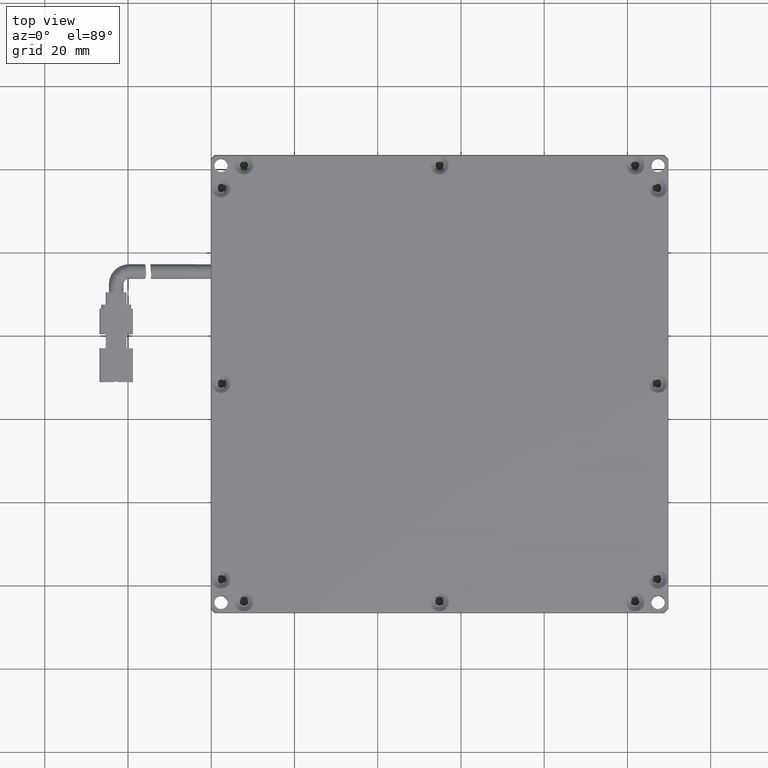
[diagram: clean part render]
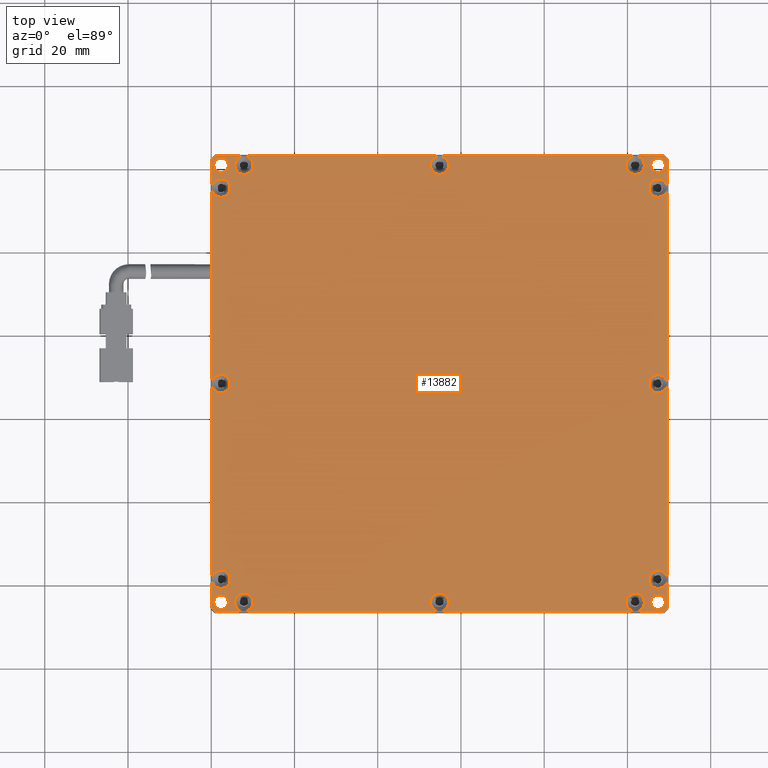
[diagram: same view with one face highlighted and labeled with its STEP entity id]
A machine part, top view. The second image highlights one B-rep face of the part: STEP entity #13882.
In plain terms, the highlighted planar face has unit normal (0, 0, -1).
Its self-contained STEP definition (entity closure, byte-faithful):
#17 = DIRECTION ( 'NONE',  ( 0.0000000000000000000, -0.0000000000000000000, 1.000000000000000000 ) ) ;
#31 = CARTESIAN_POINT ( 'NONE',  ( -49.94509354715299300, 60.90015273004998200, 1.499999999976502800 ) ) ;
#33 = AXIS2_PLACEMENT_3D ( 'NONE', #13126, #4910, #14534 ) ;
#40 = CARTESIAN_POINT ( 'NONE',  ( 41.85490645283988400, 63.10015273005349500, 1.499999999976250300 ) ) ;
#45 = CARTESIAN_POINT ( 'NONE',  ( -57.64509354715999500, 10.60015273005700800, 1.499999999976503200 ) ) ;
#79 = CARTESIAN_POINT ( 'NONE',  ( -7.345093547154510500, 60.90015273004998200, 1.499999999976502800 ) ) ;
#89 = CARTESIAN_POINT ( 'NONE',  ( 49.55490645284351100, 8.400152730050445300, 1.499999999976251200 ) ) ;
#109 = CIRCLE ( 'NONE', #8800, 1.749999999999994700 ) ;
#211 = DIRECTION ( 'NONE',  ( 0.0000000000000000000, -0.0000000000000000000, 1.000000000000000000 ) ) ;
#225 = DIRECTION ( 'NONE',  ( -0.0000000000000000000, -1.000000000000000000, -0.0000000000000000000 ) ) ;
#239 = CARTESIAN_POINT ( 'NONE',  ( -59.84509354715999800, 8.400152730050001200, 1.499999999975999600 ) ) ;
#305 = EDGE_CURVE ( 'NONE', #3238, #8330, #6789, .T. ) ;
#374 = CARTESIAN_POINT ( 'NONE',  ( 49.55490645284395200, -45.47558320123906100, 1.499999999972351000 ) ) ;
#406 = ORIENTED_EDGE ( 'NONE', *, *, #11843, .F. ) ;
#409 = EDGE_CURVE ( 'NONE', #15193, #16561, #3275, .T. ) ;
#416 = VECTOR ( 'NONE', #5576, 1000.000000000000000 ) ;
#417 = DIRECTION ( 'NONE',  ( 1.000000000000000000, 0.0000000000000000000, 0.0000000000000000000 ) ) ;
#420 = CARTESIAN_POINT ( 'NONE',  ( -52.14509354715999500, 60.90015273004998200, 1.499999999976502800 ) ) ;
#429 = FACE_OUTER_BOUND ( 'NONE', #7475, .T. ) ;
#442 = CIRCLE ( 'NONE', #15380, 2.199999999999511200 ) ;
#499 = DIRECTION ( 'NONE',  ( 1.000000000000000000, 0.0000000000000000000, 0.0000000000000000000 ) ) ;
#516 = EDGE_CURVE ( 'NONE', #13823, #10150, #10866, .T. ) ;
#560 = CARTESIAN_POINT ( 'NONE',  ( 44.05490645284703500, 60.90015273004998200, 1.499999999976501000 ) ) ;
#571 = CARTESIAN_POINT ( 'NONE',  ( -52.14509354715999500, -44.09984726994999000, 1.499999999976502800 ) ) ;
#582 = DIRECTION ( 'NONE',  ( 1.000000000000000000, 0.0000000000000000000, 0.0000000000000000000 ) ) ;
#589 = CARTESIAN_POINT ( 'NONE',  ( -52.14509354715999500, -44.09984726994999000, 1.499999999976502800 ) ) ;
#614 = VERTEX_POINT ( 'NONE', #11171 ) ;
#615 = DIRECTION ( 'NONE',  ( 1.000000000000000000, 0.0000000000000000000, 0.0000000000000000000 ) ) ;
#629 = VERTEX_POINT ( 'NONE', #79 ) ;
#634 = CARTESIAN_POINT ( 'NONE',  ( -5.145093547157498100, 63.10015273004995600, 1.499999999976251200 ) ) ;
#684 = EDGE_CURVE ( 'NONE', #10461, #3238, #14657, .T. ) ;
#728 = DIRECTION ( 'NONE',  ( 0.0000000000000000000, -1.000000000000000000, 0.0000000000000000000 ) ) ;
#744 = CARTESIAN_POINT ( 'NONE',  ( -5.145093547154998800, -44.09984726994999000, 1.499999999976503200 ) ) ;
#754 = AXIS2_PLACEMENT_3D ( 'NONE', #5328, #14928, #6706 ) ;
#759 = DIRECTION ( 'NONE',  ( 1.000000000000000000, 0.0000000000000000000, 0.0000000000000000000 ) ) ;
#764 = AXIS2_PLACEMENT_3D ( 'NONE', #13228, #5028, #14648 ) ;
#771 = AXIS2_PLACEMENT_3D ( 'NONE', #8363, #17, #9722 ) ;
#878 = EDGE_CURVE ( 'NONE', #17090, #10628, #4056, .T. ) ;
#882 = VECTOR ( 'NONE', #3374, 1000.000000000000000 ) ;
#886 = ORIENTED_EDGE ( 'NONE', *, *, #12530, .F. ) ;
#1027 = DIRECTION ( 'NONE',  ( 1.000000000000000000, 0.0000000000000000000, 0.0000000000000000000 ) ) ;
#1089 = AXIS2_PLACEMENT_3D ( 'NONE', #11993, #3720, #13337 ) ;
#1215 = LINE ( 'NONE', #10677, #4483 ) ;
#1227 = CARTESIAN_POINT ( 'NONE',  ( 49.55490645284083900, 62.27588866133746800, 1.499999999976171500 ) ) ;
#1247 = ORIENTED_EDGE ( 'NONE', *, *, #3846, .F. ) ;
#1284 = CARTESIAN_POINT ( 'NONE',  ( 45.60490645284001900, -44.09984726994999000, 1.499999999976394900 ) ) ;
#1318 = DIRECTION ( 'NONE',  ( 0.0000000000000000000, -1.000000000000000000, 0.0000000000000000000 ) ) ;
#1322 = CIRCLE ( 'NONE', #11028, 1.749999999999987600 ) ;
#1329 = AXIS2_PLACEMENT_3D ( 'NONE', #2086, #11779, #3514 ) ;
#1491 = CIRCLE ( 'NONE', #3435, 2.200000000007001700 ) ;
#1576 = DIRECTION ( 'NONE',  ( 0.0000000000000000000, 2.464095846551420200E-017, 1.000000000000000000 ) ) ;
#1600 = CARTESIAN_POINT ( 'NONE',  ( 47.35490645284001200, 60.90015273004998200, 1.499999999976394900 ) ) ;
#1619 = CARTESIAN_POINT ( 'NONE',  ( -5.145093547160004600, -46.29984726994998600, 1.499999999975999600 ) ) ;
#1624 = EDGE_CURVE ( 'NONE', #5637, #15183, #1491, .T. ) ;
#1659 = ORIENTED_EDGE ( 'NONE', *, *, #4118, .F. ) ;
#1667 = VERTEX_POINT ( 'NONE', #7657 ) ;
#1710 = EDGE_CURVE ( 'NONE', #10150, #13823, #2580, .T. ) ;
#1776 = VECTOR ( 'NONE', #10182, 1000.000000000000000 ) ;
#1819 = DIRECTION ( 'NONE',  ( 1.000000000000000000, 0.0000000000000000000, 0.0000000000000000000 ) ) ;
#1825 = EDGE_CURVE ( 'NONE', #5127, #4232, #7369, .T. ) ;
#1880 = AXIS2_PLACEMENT_3D ( 'NONE', #6906, #16509, #8296 ) ;
#1950 = CARTESIAN_POINT ( 'NONE',  ( 49.55490645284352500, -38.59984726994954200, 1.499999999976253900 ) ) ;
#1952 = ORIENTED_EDGE ( 'NONE', *, *, #15046, .F. ) ;
#1968 = DIRECTION ( 'NONE',  ( 1.000000000000000000, 0.0000000000000000000, 0.0000000000000000000 ) ) ;
#1988 = DIRECTION ( 'NONE',  ( 1.000000000000000000, 0.0000000000000000000, 0.0000000000000000000 ) ) ;
#2003 = CIRCLE ( 'NONE', #13406, 2.200000000007008800 ) ;
#2020 = AXIS2_PLACEMENT_3D ( 'NONE', #11742, #3476, #13097 ) ;
#2036 = CIRCLE ( 'NONE', #7072, 2.200000000007001700 ) ;
#2086 = CARTESIAN_POINT ( 'NONE',  ( -57.64509354715999500, -44.09984726994999000, 1.499999999976394900 ) ) ;
#2104 = EDGE_CURVE ( 'NONE', #2414, #16813, #16998, .T. ) ;
#2113 = VERTEX_POINT ( 'NONE', #10269 ) ;
#2140 = DIRECTION ( 'NONE',  ( 0.0000000000000000000, -1.000000000000000000, 0.0000000000000000000 ) ) ;
#2290 = EDGE_CURVE ( 'NONE', #8701, #3238, #13771, .T. ) ;
#2327 = CARTESIAN_POINT ( 'NONE',  ( -5.145093547160004600, 63.10015273004995600, 1.499999999975999600 ) ) ;
#2409 = EDGE_CURVE ( 'NONE', #7368, #17090, #16354, .T. ) ;
#2414 = VERTEX_POINT ( 'NONE', #8625 ) ;
#2520 = EDGE_CURVE ( 'NONE', #15606, #11055, #14850, .T. ) ;
#2545 = LINE ( 'NONE', #8590, #9913 ) ;
#2562 = ORIENTED_EDGE ( 'NONE', *, *, #13867, .F. ) ;
#2580 = CIRCLE ( 'NONE', #10861, 2.200000000007022600 ) ;
#2633 = AXIS2_PLACEMENT_3D ( 'NONE', #15417, #7208, #16792 ) ;
#2644 = CARTESIAN_POINT ( 'NONE',  ( -59.39509354715998100, 60.90015273004998200, 1.499999999976394900 ) ) ;
#2645 = EDGE_CURVE ( 'NONE', #13823, #10453, #15465, .T. ) ;
#2675 = DIRECTION ( 'NONE',  ( 0.7071067811870565000, 0.7071067811860385400, -7.072468389092289300E-013 ) ) ;
#2752 = CIRCLE ( 'NONE', #6015, 2.200000000007008800 ) ;
#2770 = DIRECTION ( 'NONE',  ( 0.0000000000000000000, -0.0000000000000000000, 1.000000000000000000 ) ) ;
#2800 = EDGE_CURVE ( 'NONE', #10494, #9444, #9035, .T. ) ;
#2820 = CARTESIAN_POINT ( 'NONE',  ( 41.85490645283999800, 60.90015273004998200, 1.499999999976501000 ) ) ;
#2936 = DIRECTION ( 'NONE',  ( 0.0000000000000000000, -0.0000000000000000000, 1.000000000000000000 ) ) ;
#2995 = ORIENTED_EDGE ( 'NONE', *, *, #11430, .F. ) ;
#3006 = DIRECTION ( 'NONE',  ( 1.000000000000000000, 0.0000000000000000000, 0.0000000000000000000 ) ) ;
#3022 = CARTESIAN_POINT ( 'NONE',  ( 47.35490645284001200, -44.09984726994999000, 1.499999999976394900 ) ) ;
#3062 = CARTESIAN_POINT ( 'NONE',  ( 41.85490645283999800, -44.09984726994999000, 1.499999999976497900 ) ) ;
#3144 = CARTESIAN_POINT ( 'NONE',  ( -5.145093547154998800, -44.09984726994999000, 1.499999999976503200 ) ) ;
#3169 = CIRCLE ( 'NONE', #16489, 2.199999999999511200 ) ;
#3182 = CARTESIAN_POINT ( 'NONE',  ( -59.84509354716350800, -38.59984726995022400, 1.499999999976253400 ) ) ;
#3199 = AXIS2_PLACEMENT_3D ( 'NONE', #2820, #12506, #4238 ) ;
#3224 = ORIENTED_EDGE ( 'NONE', *, *, #3867, .F. ) ;
#3238 = VERTEX_POINT ( 'NONE', #10977 ) ;
#3275 = CIRCLE ( 'NONE', #16688, 2.200000000007008800 ) ;
#3355 = CARTESIAN_POINT ( 'NONE',  ( -5.145093547160004600, -46.29984726994998600, 1.499999999975999600 ) ) ;
#3368 = AXIS2_PLACEMENT_3D ( 'NONE', #11233, #2936, #12607 ) ;
#3374 = DIRECTION ( 'NONE',  ( 0.0000000000000000000, 1.000000000000000000, 0.0000000000000000000 ) ) ;
#3375 = CIRCLE ( 'NONE', #10775, 2.200000000007008800 ) ;
#3376 = CIRCLE ( 'NONE', #14885, 2.200000000007015900 ) ;
#3435 = AXIS2_PLACEMENT_3D ( 'NONE', #17135, #8937, #582 ) ;
#3455 = EDGE_LOOP ( 'NONE', ( #4543, #7915 ) ) ;
#3476 = DIRECTION ( 'NONE',  ( 0.0000000000000000000, 2.464095846551414100E-017, 1.000000000000000000 ) ) ;
#3514 = DIRECTION ( 'NONE',  ( 1.000000000000000000, 0.0000000000000000000, 0.0000000000000000000 ) ) ;
#3560 = CARTESIAN_POINT ( 'NONE',  ( 49.55490645284000100, 8.400152730049994100, 1.499999999975999600 ) ) ;
#3579 = AXIS2_PLACEMENT_3D ( 'NONE', #14121, #5880, #15505 ) ;
#3600 = CARTESIAN_POINT ( 'NONE',  ( 47.35490645284001200, -38.59984726995000400, 1.499999999976507500 ) ) ;
#3617 = AXIS2_PLACEMENT_3D ( 'NONE', #17309, #9108, #759 ) ;
#3644 = VECTOR ( 'NONE', #9959, 1000.000000000000000 ) ;
#3692 = DIRECTION ( 'NONE',  ( -0.0000000000000000000, -1.000000000000000000, -0.0000000000000000000 ) ) ;
#3720 = DIRECTION ( 'NONE',  ( 0.0000000000000000000, 2.464095846551412200E-017, 1.000000000000000000 ) ) ;
#3785 = CARTESIAN_POINT ( 'NONE',  ( 39.65490645283296100, -44.09984726994999000, 1.499999999976497900 ) ) ;
#3829 = EDGE_CURVE ( 'NONE', #11652, #5127, #13934, .T. ) ;
#3839 = CARTESIAN_POINT ( 'NONE',  ( -5.145093547160004600, 63.10015273004995600, 1.499999999975999600 ) ) ;
#3846 = EDGE_CURVE ( 'NONE', #4561, #17498, #16727, .T. ) ;
#3867 = EDGE_CURVE ( 'NONE', #17090, #10494, #12646, .T. ) ;
#3885 = EDGE_CURVE ( 'NONE', #614, #9444, #2036, .T. ) ;
#3918 = CIRCLE ( 'NONE', #17537, 1.749999999999994700 ) ;
#4025 = ORIENTED_EDGE ( 'NONE', *, *, #8362, .F. ) ;
#4056 = CIRCLE ( 'NONE', #16588, 2.200000000007036800 ) ;
#4060 = EDGE_CURVE ( 'NONE', #7933, #5637, #4886, .T. ) ;
#4118 = EDGE_CURVE ( 'NONE', #4736, #17090, #17364, .T. ) ;
#4141 = LINE ( 'NONE', #8361, #416 ) ;
#4157 = FACE_BOUND ( 'NONE', #10623, .T. ) ;
#4232 = VERTEX_POINT ( 'NONE', #6194 ) ;
#4237 = CIRCLE ( 'NONE', #6237, 1.749999999999994700 ) ;
#4238 = DIRECTION ( 'NONE',  ( 1.000000000000000000, 0.0000000000000000000, 0.0000000000000000000 ) ) ;
#4240 = CARTESIAN_POINT ( 'NONE',  ( -52.14509354715965400, -46.29984726995348900, 1.499999999976251200 ) ) ;
#4315 = DIRECTION ( 'NONE',  ( 0.0000000000000000000, 0.0000000000000000000, 1.000000000000000000 ) ) ;
#4318 = ORIENTED_EDGE ( 'NONE', *, *, #3829, .F. ) ;
#4357 = DIRECTION ( 'NONE',  ( 1.000000000000000000, -0.0000000000000000000, -0.0000000000000000000 ) ) ;
#4430 = VERTEX_POINT ( 'NONE', #10789 ) ;
#4438 = DIRECTION ( 'NONE',  ( 1.000000000000000000, 0.0000000000000000000, 0.0000000000000000000 ) ) ;
#4475 = DIRECTION ( 'NONE',  ( 1.000000000000000000, 0.0000000000000000000, 0.0000000000000000000 ) ) ;
#4483 = VECTOR ( 'NONE', #6566, 1000.000000000000000 ) ;
#4543 = ORIENTED_EDGE ( 'NONE', *, *, #6625, .F. ) ;
#4553 = DIRECTION ( 'NONE',  ( 0.0000000000000000000, -1.000000000000000000, 0.0000000000000000000 ) ) ;
#4561 = VERTEX_POINT ( 'NONE', #9626 ) ;
#4592 = FACE_BOUND ( 'NONE', #3455, .T. ) ;
#4716 = CARTESIAN_POINT ( 'NONE',  ( -54.34509354716699600, 60.90015273004998200, 1.499999999976502800 ) ) ;
#4736 = VERTEX_POINT ( 'NONE', #4826 ) ;
#4826 = CARTESIAN_POINT ( 'NONE',  ( 48.73064238413535100, -46.29984726994883500, 1.499999999972905000 ) ) ;
#4870 = VERTEX_POINT ( 'NONE', #17518 ) ;
#4886 = CIRCLE ( 'NONE', #754, 2.200000000007001700 ) ;
#4910 = DIRECTION ( 'NONE',  ( 0.0000000000000000000, 0.0000000000000000000, -1.000000000000000000 ) ) ;
#4982 = CARTESIAN_POINT ( 'NONE',  ( 44.05490645284703500, -44.09984726994999000, 1.499999999976497900 ) ) ;
#4984 = CARTESIAN_POINT ( 'NONE',  ( 45.15490645283299600, 8.400152730049999400, 1.499999999976502800 ) ) ;
#5014 = DIRECTION ( 'NONE',  ( 1.000000000000000000, 0.0000000000000000000, 0.0000000000000000000 ) ) ;
#5028 = DIRECTION ( 'NONE',  ( 0.0000000000000000000, -0.0000000000000000000, 1.000000000000000000 ) ) ;
#5035 = ORIENTED_EDGE ( 'NONE', *, *, #6857, .F. ) ;
#5050 = CARTESIAN_POINT ( 'NONE',  ( 49.55490645284000100, 8.400152730049994100, 1.499999999975999600 ) ) ;
#5100 = ORIENTED_EDGE ( 'NONE', *, *, #17670, .F. ) ;
#5107 = CARTESIAN_POINT ( 'NONE',  ( -2.945093547155488000, 60.90015273004998200, 1.499999999976502800 ) ) ;
#5121 = DIRECTION ( 'NONE',  ( 0.0000000000000000000, 2.464095846551420200E-017, 1.000000000000000000 ) ) ;
#5127 = VERTEX_POINT ( 'NONE', #40 ) ;
#5148 = ORIENTED_EDGE ( 'NONE', *, *, #16338, .F. ) ;
#5157 = EDGE_CURVE ( 'NONE', #7933, #11652, #16768, .T. ) ;
#5180 = DIRECTION ( 'NONE',  ( 1.000000000000000000, -0.0000000000000000000, -0.0000000000000000000 ) ) ;
#5189 = DIRECTION ( 'NONE',  ( 0.0000000000000000000, -0.0000000000000000000, 1.000000000000000000 ) ) ;
#5213 = LINE ( 'NONE', #15052, #15733 ) ;
#5245 = ORIENTED_EDGE ( 'NONE', *, *, #6153, .F. ) ;
#5272 = VERTEX_POINT ( 'NONE', #560 ) ;
#5290 = ORIENTED_EDGE ( 'NONE', *, *, #10931, .F. ) ;
#5322 = ORIENTED_EDGE ( 'NONE', *, *, #7354, .F. ) ;
#5328 = CARTESIAN_POINT ( 'NONE',  ( -52.14509354715999500, 60.90015273004998200, 1.499999999976502800 ) ) ;
#5377 = VECTOR ( 'NONE', #15474, 1000.000000000000000 ) ;
#5394 = CIRCLE ( 'NONE', #17220, 2.200000000007008800 ) ;
#5576 = DIRECTION ( 'NONE',  ( 0.0000000000000000000, 1.000000000000000000, 0.0000000000000000000 ) ) ;
#5637 = VERTEX_POINT ( 'NONE', #4716 ) ;
#5660 = DIRECTION ( 'NONE',  ( 0.0000000000000000000, 0.0000000000000000000, 1.000000000000000000 ) ) ;
#5685 = VERTEX_POINT ( 'NONE', #14407 ) ;
#5718 = DIRECTION ( 'NONE',  ( 0.0000000000000000000, 2.464095846551420200E-017, 1.000000000000000000 ) ) ;
#5810 = LINE ( 'NONE', #3560, #12699 ) ;
#5815 = DIRECTION ( 'NONE',  ( 0.0000000000000000000, -0.0000000000000000000, 1.000000000000000000 ) ) ;
#5858 = CARTESIAN_POINT ( 'NONE',  ( 45.15490645283298900, 55.40015273004998200, 1.499999999976507500 ) ) ;
#5880 = DIRECTION ( 'NONE',  ( 0.0000000000000000000, -0.0000000000000000000, 1.000000000000000000 ) ) ;
#5885 = DIRECTION ( 'NONE',  ( 0.0000000000000000000, -0.0000000000000000000, 1.000000000000000000 ) ) ;
#6014 = EDGE_CURVE ( 'NONE', #15183, #7933, #8657, .T. ) ;
#6015 = AXIS2_PLACEMENT_3D ( 'NONE', #17857, #9640, #1318 ) ;
#6016 = CARTESIAN_POINT ( 'NONE',  ( -5.145093547160004600, -46.29984726994998600, 1.499999999975999600 ) ) ;
#6018 = CARTESIAN_POINT ( 'NONE',  ( -55.89509354716000200, -44.09984726994999000, 1.499999999976394900 ) ) ;
#6153 = EDGE_CURVE ( 'NONE', #8069, #1667, #5810, .T. ) ;
#6178 = CIRCLE ( 'NONE', #2633, 2.199999999999511200 ) ;
#6189 = CARTESIAN_POINT ( 'NONE',  ( -59.39509354715998100, -44.09984726994999000, 1.499999999976394900 ) ) ;
#6191 = VECTOR ( 'NONE', #17005, 1000.000000000000000 ) ;
#6194 = CARTESIAN_POINT ( 'NONE',  ( 48.73064238413660100, 63.10015273005134900, 1.499999999974948500 ) ) ;
#6237 = AXIS2_PLACEMENT_3D ( 'NONE', #1600, #11288, #3006 ) ;
#6286 = CARTESIAN_POINT ( 'NONE',  ( 41.85490645283999800, -44.09984726994999000, 1.499999999976497900 ) ) ;
#6353 = CARTESIAN_POINT ( 'NONE',  ( -52.14509354716011600, 63.10015273005348000, 1.499999999976251200 ) ) ;
#6367 = ORIENTED_EDGE ( 'NONE', *, *, #14140, .F. ) ;
#6384 = VECTOR ( 'NONE', #12694, 1000.000000000000000 ) ;
#6436 = CARTESIAN_POINT ( 'NONE',  ( 39.65490645283296100, 60.90015273004998200, 1.499999999976501000 ) ) ;
#6513 = EDGE_CURVE ( 'NONE', #629, #14013, #3169, .T. ) ;
#6560 = DIRECTION ( 'NONE',  ( 0.7071067811824819400, -0.7071067811906132100, 1.538940846485713900E-012 ) ) ;
#6566 = DIRECTION ( 'NONE',  ( -0.0000000000000000000, -1.000000000000000000, -0.0000000000000000000 ) ) ;
#6592 = ORIENTED_EDGE ( 'NONE', *, *, #12776, .F. ) ;
#6625 = EDGE_CURVE ( 'NONE', #4870, #6924, #109, .T. ) ;
#6664 = CARTESIAN_POINT ( 'NONE',  ( -57.64509354715999500, 8.400152730049999400, 1.499999999976503200 ) ) ;
#6706 = DIRECTION ( 'NONE',  ( 1.000000000000000000, 0.0000000000000000000, 0.0000000000000000000 ) ) ;
#6789 = CIRCLE ( 'NONE', #1880, 2.200000000007008800 ) ;
#6857 = EDGE_CURVE ( 'NONE', #9439, #9743, #3376, .T. ) ;
#6906 = CARTESIAN_POINT ( 'NONE',  ( -57.64509354715999500, 8.400152730049999400, 1.499999999976503200 ) ) ;
#6924 = VERTEX_POINT ( 'NONE', #8567 ) ;
#7001 = VECTOR ( 'NONE', #5180, 1000.000000000000000 ) ;
#7035 = ORIENTED_EDGE ( 'NONE', *, *, #6513, .F. ) ;
#7072 = AXIS2_PLACEMENT_3D ( 'NONE', #589, #10315, #1988 ) ;
#7073 = ORIENTED_EDGE ( 'NONE', *, *, #16176, .F. ) ;
#7208 = DIRECTION ( 'NONE',  ( 0.0000000000000000000, -0.0000000000000000000, 1.000000000000000000 ) ) ;
#7246 = CARTESIAN_POINT ( 'NONE',  ( -49.94509354715299300, -44.09984726994999000, 1.499999999976502800 ) ) ;
#7354 = EDGE_CURVE ( 'NONE', #9439, #13823, #1215, .T. ) ;
#7368 = VERTEX_POINT ( 'NONE', #3785 ) ;
#7369 = LINE ( 'NONE', #3839, #13801 ) ;
#7426 = CARTESIAN_POINT ( 'NONE',  ( -59.02082947844625200, -46.29984726994823800, 1.499999999973532100 ) ) ;
#7475 = EDGE_LOOP ( 'NONE', ( #15159, #15096, #6592, #11459, #886, #2562, #1247, #4025, #14688, #10602, #10258, #13239, #13396, #17539, #3224, #8969, #17033, #13852, #1659, #14223, #10067, #15579, #9321, #5322, #5100, #5035, #5290, #12522, #7661, #5245, #1952, #17349, #9301, #5148, #15663, #4318, #14557, #7035, #17914, #11279, #10296, #16872, #14479, #11274, #15855, #15275, #7073, #15023, #2995, #6367, #13009, #12950 ) ) ;
#7492 = ORIENTED_EDGE ( 'NONE', *, *, #14735, .F. ) ;
#7649 = VECTOR ( 'NONE', #16147, 999.9999999999998900 ) ;
#7657 = CARTESIAN_POINT ( 'NONE',  ( 49.55490645284352500, 55.40015273005042200, 1.499999999976253900 ) ) ;
#7661 = ORIENTED_EDGE ( 'NONE', *, *, #13064, .F. ) ;
#7676 = DIRECTION ( 'NONE',  ( 1.000000000000000000, 0.0000000000000000000, 0.0000000000000000000 ) ) ;
#7680 = ORIENTED_EDGE ( 'NONE', *, *, #12544, .F. ) ;
#7859 = FACE_BOUND ( 'NONE', #10155, .T. ) ;
#7915 = ORIENTED_EDGE ( 'NONE', *, *, #11833, .F. ) ;
#7922 = CARTESIAN_POINT ( 'NONE',  ( 49.55490645283630600, -45.47558320124630900, 1.499999999970764700 ) ) ;
#7933 = VERTEX_POINT ( 'NONE', #6353 ) ;
#7946 = CIRCLE ( 'NONE', #9037, 2.200000000007036800 ) ;
#8050 = DIRECTION ( 'NONE',  ( 0.0000000000000000000, -1.000000000000000000, 0.0000000000000000000 ) ) ;
#8069 = VERTEX_POINT ( 'NONE', #1227 ) ;
#8116 = AXIS2_PLACEMENT_3D ( 'NONE', #14048, #5815, #15435 ) ;
#8296 = DIRECTION ( 'NONE',  ( 0.0000000000000000000, -1.000000000000000000, 0.0000000000000000000 ) ) ;
#8330 = VERTEX_POINT ( 'NONE', #15645 ) ;
#8361 = CARTESIAN_POINT ( 'NONE',  ( -59.84509354715999800, 8.400152730050001200, 1.499999999975999600 ) ) ;
#8362 = EDGE_CURVE ( 'NONE', #9444, #4561, #9200, .T. ) ;
#8363 = CARTESIAN_POINT ( 'NONE',  ( 41.85490645283999800, 60.90015273004998200, 1.499999999976501000 ) ) ;
#8567 = CARTESIAN_POINT ( 'NONE',  ( 45.60490645284001900, 60.90015273004998200, 1.499999999976394900 ) ) ;
#8575 = CARTESIAN_POINT ( 'NONE',  ( -5.145093547154998800, 60.90015273004998200, 1.499999999976502800 ) ) ;
#8590 = CARTESIAN_POINT ( 'NONE',  ( 49.55490645284000100, 8.400152730049994100, 1.499999999975999600 ) ) ;
#8625 = CARTESIAN_POINT ( 'NONE',  ( 49.10490645284000500, -44.09984726994999000, 1.499999999976394900 ) ) ;
#8627 = CIRCLE ( 'NONE', #764, 1.749999999999987600 ) ;
#8657 = CIRCLE ( 'NONE', #12007, 2.200000000007001700 ) ;
#8671 = VECTOR ( 'NONE', #6560, 1000.000000000000000 ) ;
#8701 = VERTEX_POINT ( 'NONE', #45 ) ;
#8771 = DIRECTION ( 'NONE',  ( 0.0000000000000000000, 0.0000000000000000000, 1.000000000000000000 ) ) ;
#8800 = AXIS2_PLACEMENT_3D ( 'NONE', #17585, #9359, #1027 ) ;
#8842 = CIRCLE ( 'NONE', #11223, 2.200000000007022600 ) ;
#8854 = DIRECTION ( 'NONE',  ( 0.0000000000000000000, 0.0000000000000000000, 1.000000000000000000 ) ) ;
#8918 = CARTESIAN_POINT ( 'NONE',  ( -57.64509354715999500, -36.39984726994299500, 1.499999999976499900 ) ) ;
#8937 = DIRECTION ( 'NONE',  ( 0.0000000000000000000, -0.0000000000000000000, 1.000000000000000000 ) ) ;
#8951 = VERTEX_POINT ( 'NONE', #8918 ) ;
#8965 = DIRECTION ( 'NONE',  ( 0.0000000000000000000, 0.0000000000000000000, 1.000000000000000000 ) ) ;
#8969 = ORIENTED_EDGE ( 'NONE', *, *, #2409, .F. ) ;
#9019 = AXIS2_PLACEMENT_3D ( 'NONE', #16953, #8771, #417 ) ;
#9035 = LINE ( 'NONE', #10594, #5377 ) ;
#9037 = AXIS2_PLACEMENT_3D ( 'NONE', #3062, #12733, #4475 ) ;
#9049 = CIRCLE ( 'NONE', #9958, 2.199999999999514800 ) ;
#9075 = DIRECTION ( 'NONE',  ( 0.0000000000000000000, 2.464095846551412200E-017, 1.000000000000000000 ) ) ;
#9108 = DIRECTION ( 'NONE',  ( 0.0000000000000000000, 0.0000000000000000000, 1.000000000000000000 ) ) ;
#9200 = LINE ( 'NONE', #6016, #1776 ) ;
#9275 = EDGE_CURVE ( 'NONE', #5685, #8951, #10263, .T. ) ;
#9301 = ORIENTED_EDGE ( 'NONE', *, *, #15175, .F. ) ;
#9321 = ORIENTED_EDGE ( 'NONE', *, *, #516, .F. ) ;
#9359 = DIRECTION ( 'NONE',  ( 0.0000000000000000000, 0.0000000000000000000, 1.000000000000000000 ) ) ;
#9393 = VERTEX_POINT ( 'NONE', #2644 ) ;
#9439 = VERTEX_POINT ( 'NONE', #89 ) ;
#9444 = VERTEX_POINT ( 'NONE', #4240 ) ;
#9489 = VECTOR ( 'NONE', #4357, 1000.000000000000000 ) ;
#9626 = CARTESIAN_POINT ( 'NONE',  ( -59.02082947844575500, -46.29984726995021300, 1.499999999975614600 ) ) ;
#9640 = DIRECTION ( 'NONE',  ( 0.0000000000000000000, 2.464095846551412200E-017, 1.000000000000000000 ) ) ;
#9722 = DIRECTION ( 'NONE',  ( 1.000000000000000000, 0.0000000000000000000, 0.0000000000000000000 ) ) ;
#9743 = VERTEX_POINT ( 'NONE', #4984 ) ;
#9778 = EDGE_CURVE ( 'NONE', #11994, #7933, #10662, .T. ) ;
#9860 = VECTOR ( 'NONE', #12983, 1000.000000000000000 ) ;
#9888 = CARTESIAN_POINT ( 'NONE',  ( -57.64509354715999500, 55.40015273004998200, 1.499999999976499900 ) ) ;
#9913 = VECTOR ( 'NONE', #225, 1000.000000000000000 ) ;
#9921 = ORIENTED_EDGE ( 'NONE', *, *, #2520, .F. ) ;
#9927 = DIRECTION ( 'NONE',  ( 1.000000000000000000, 0.0000000000000000000, 0.0000000000000000000 ) ) ;
#9958 = AXIS2_PLACEMENT_3D ( 'NONE', #3144, #12798, #4553 ) ;
#9959 = DIRECTION ( 'NONE',  ( 0.0000000000000000000, 1.000000000000000000, 0.0000000000000000000 ) ) ;
#9986 = EDGE_LOOP ( 'NONE', ( #16102, #7492 ) ) ;
#10067 = ORIENTED_EDGE ( 'NONE', *, *, #2645, .F. ) ;
#10125 = CARTESIAN_POINT ( 'NONE',  ( 45.15490645283298900, -38.59984726995000400, 1.499999999976507500 ) ) ;
#10129 = DIRECTION ( 'NONE',  ( 0.0000000000000000000, -0.0000000000000000000, 1.000000000000000000 ) ) ;
#10130 = CARTESIAN_POINT ( 'NONE',  ( -57.64509354715999500, 57.60015273005699000, 1.499999999976499900 ) ) ;
#10150 = VERTEX_POINT ( 'NONE', #10125 ) ;
#10155 = EDGE_LOOP ( 'NONE', ( #11381, #9921 ) ) ;
#10182 = DIRECTION ( 'NONE',  ( -1.000000000000000000, 0.0000000000000000000, 0.0000000000000000000 ) ) ;
#10258 = ORIENTED_EDGE ( 'NONE', *, *, #13269, .F. ) ;
#10263 = CIRCLE ( 'NONE', #1089, 2.200000000007008800 ) ;
#10269 = CARTESIAN_POINT ( 'NONE',  ( -59.84509354716350800, 55.40015273004975400, 1.499999999976253400 ) ) ;
#10289 = DIRECTION ( 'NONE',  ( 0.0000000000000000000, -0.0000000000000000000, 1.000000000000000000 ) ) ;
#10296 = ORIENTED_EDGE ( 'NONE', *, *, #6014, .F. ) ;
#10315 = DIRECTION ( 'NONE',  ( 0.0000000000000000000, -0.0000000000000000000, 1.000000000000000000 ) ) ;
#10334 = CARTESIAN_POINT ( 'NONE',  ( -59.84509354715999800, 8.400152730050001200, 1.499999999975999600 ) ) ;
#10453 = VERTEX_POINT ( 'NONE', #374 ) ;
#10458 = DIRECTION ( 'NONE',  ( 0.0000000000000000000, 2.464095846559238600E-017, 1.000000000000000000 ) ) ;
#10461 = VERTEX_POINT ( 'NONE', #3182 ) ;
#10494 = VERTEX_POINT ( 'NONE', #15736 ) ;
#10592 = EDGE_CURVE ( 'NONE', #10494, #12720, #13796, .T. ) ;
#10594 = CARTESIAN_POINT ( 'NONE',  ( -5.145093547160004600, -46.29984726994998600, 1.499999999975999600 ) ) ;
#10602 = ORIENTED_EDGE ( 'NONE', *, *, #13652, .F. ) ;
#10623 = EDGE_LOOP ( 'NONE', ( #7680, #406 ) ) ;
#10628 = VERTEX_POINT ( 'NONE', #4982 ) ;
#10662 = LINE ( 'NONE', #2327, #7001 ) ;
#10677 = CARTESIAN_POINT ( 'NONE',  ( 49.55490645284000100, 8.400152730049994100, 1.499999999975999600 ) ) ;
#10775 = AXIS2_PLACEMENT_3D ( 'NONE', #13320, #5121, #14738 ) ;
#10789 = CARTESIAN_POINT ( 'NONE',  ( -55.89509354716000200, 60.90015273004998200, 1.499999999976394900 ) ) ;
#10796 = EDGE_CURVE ( 'NONE', #12595, #11994, #5213, .T. ) ;
#10861 = AXIS2_PLACEMENT_3D ( 'NONE', #3600, #13220, #5014 ) ;
#10866 = CIRCLE ( 'NONE', #9019, 2.200000000007022600 ) ;
#10888 = CIRCLE ( 'NONE', #3617, 2.200000000007015900 ) ;
#10931 = EDGE_CURVE ( 'NONE', #1667, #9439, #2545, .T. ) ;
#10956 = CIRCLE ( 'NONE', #11200, 2.200000000007036800 ) ;
#10977 = CARTESIAN_POINT ( 'NONE',  ( -59.84509354716350100, 8.400152730049768500, 1.499999999976251400 ) ) ;
#11028 = AXIS2_PLACEMENT_3D ( 'NONE', #13395, #5189, #14810 ) ;
#11055 = VERTEX_POINT ( 'NONE', #6018 ) ;
#11070 = CARTESIAN_POINT ( 'NONE',  ( 41.85490645283999800, 60.90015273004998200, 1.499999999976501000 ) ) ;
#11134 = CARTESIAN_POINT ( 'NONE',  ( -57.64509354715999500, 53.20015273004297300, 1.499999999976499900 ) ) ;
#11171 = CARTESIAN_POINT ( 'NONE',  ( -54.34509354716699600, -44.09984726994999000, 1.499999999976502800 ) ) ;
#11200 = AXIS2_PLACEMENT_3D ( 'NONE', #11070, #2770, #12452 ) ;
#11223 = AXIS2_PLACEMENT_3D ( 'NONE', #12568, #4315, #13947 ) ;
#11233 = CARTESIAN_POINT ( 'NONE',  ( -52.14509354715999500, -44.09984726994999000, 1.499999999976502800 ) ) ;
#11268 = DIRECTION ( 'NONE',  ( 0.0000000000000000000, -1.000000000000000000, 0.0000000000000000000 ) ) ;
#11274 = ORIENTED_EDGE ( 'NONE', *, *, #9778, .F. ) ;
#11279 = ORIENTED_EDGE ( 'NONE', *, *, #5157, .F. ) ;
#11286 = LINE ( 'NONE', #7922, #7649 ) ;
#11288 = DIRECTION ( 'NONE',  ( 0.0000000000000000000, 0.0000000000000000000, 1.000000000000000000 ) ) ;
#11381 = ORIENTED_EDGE ( 'NONE', *, *, #17813, .F. ) ;
#11430 = EDGE_CURVE ( 'NONE', #2113, #15193, #5394, .T. ) ;
#11459 = ORIENTED_EDGE ( 'NONE', *, *, #9275, .F. ) ;
#11575 = CIRCLE ( 'NONE', #8116, 1.749999999999987600 ) ;
#11652 = VERTEX_POINT ( 'NONE', #634 ) ;
#11735 = EDGE_CURVE ( 'NONE', #5127, #15761, #10956, .T. ) ;
#11742 = CARTESIAN_POINT ( 'NONE',  ( -57.64509354715999500, 8.400152730049999400, 1.499999999976503200 ) ) ;
#11779 = DIRECTION ( 'NONE',  ( 0.0000000000000000000, -0.0000000000000000000, 1.000000000000000000 ) ) ;
#11833 = EDGE_CURVE ( 'NONE', #6924, #4870, #4237, .T. ) ;
#11836 = VECTOR ( 'NONE', #3692, 1000.000000000000000 ) ;
#11843 = EDGE_CURVE ( 'NONE', #9393, #4430, #11575, .T. ) ;
#11878 = EDGE_CURVE ( 'NONE', #10628, #7368, #7946, .T. ) ;
#11968 = EDGE_CURVE ( 'NONE', #13713, #1667, #12642, .T. ) ;
#11993 = CARTESIAN_POINT ( 'NONE',  ( -57.64509354715999500, -38.59984726995000400, 1.499999999976499900 ) ) ;
#11994 = VERTEX_POINT ( 'NONE', #15678 ) ;
#12007 = AXIS2_PLACEMENT_3D ( 'NONE', #420, #10129, #1819 ) ;
#12215 = EDGE_CURVE ( 'NONE', #2113, #12595, #17660, .T. ) ;
#12315 = LINE ( 'NONE', #16192, #8671 ) ;
#12370 = CARTESIAN_POINT ( 'NONE',  ( -59.84509354715999800, 8.400152730050001200, 1.499999999975999600 ) ) ;
#12452 = DIRECTION ( 'NONE',  ( 1.000000000000000000, 0.0000000000000000000, 0.0000000000000000000 ) ) ;
#12506 = DIRECTION ( 'NONE',  ( 0.0000000000000000000, -0.0000000000000000000, 1.000000000000000000 ) ) ;
#12522 = ORIENTED_EDGE ( 'NONE', *, *, #11968, .F. ) ;
#12530 = EDGE_CURVE ( 'NONE', #10461, #5685, #16348, .T. ) ;
#12544 = EDGE_CURVE ( 'NONE', #4430, #9393, #8627, .T. ) ;
#12568 = CARTESIAN_POINT ( 'NONE',  ( 47.35490645284001200, 55.40015273004998200, 1.499999999976507500 ) ) ;
#12595 = VERTEX_POINT ( 'NONE', #14710 ) ;
#12607 = DIRECTION ( 'NONE',  ( 1.000000000000000000, 0.0000000000000000000, 0.0000000000000000000 ) ) ;
#12624 = CARTESIAN_POINT ( 'NONE',  ( -5.145093547160004600, 63.10015273004995600, 1.499999999975999600 ) ) ;
#12642 = CIRCLE ( 'NONE', #17299, 2.200000000007022600 ) ;
#12646 = LINE ( 'NONE', #3355, #9860 ) ;
#12693 = DIRECTION ( 'NONE',  ( 0.0000000000000000000, 0.0000000000000000000, 1.000000000000000000 ) ) ;
#12694 = DIRECTION ( 'NONE',  ( -1.000000000000000000, 0.0000000000000000000, 0.0000000000000000000 ) ) ;
#12699 = VECTOR ( 'NONE', #16036, 1000.000000000000000 ) ;
#12720 = VERTEX_POINT ( 'NONE', #17746 ) ;
#12733 = DIRECTION ( 'NONE',  ( 0.0000000000000000000, -0.0000000000000000000, 1.000000000000000000 ) ) ;
#12763 = DIRECTION ( 'NONE',  ( 1.000000000000000000, -0.0000000000000000000, -0.0000000000000000000 ) ) ;
#12776 = EDGE_CURVE ( 'NONE', #8951, #10461, #2752, .T. ) ;
#12798 = DIRECTION ( 'NONE',  ( 0.0000000000000000000, 2.464095846559238600E-017, 1.000000000000000000 ) ) ;
#12950 = ORIENTED_EDGE ( 'NONE', *, *, #16737, .F. ) ;
#12983 = DIRECTION ( 'NONE',  ( -1.000000000000000000, 0.0000000000000000000, 0.0000000000000000000 ) ) ;
#13009 = ORIENTED_EDGE ( 'NONE', *, *, #2290, .F. ) ;
#13064 = EDGE_CURVE ( 'NONE', #1667, #13713, #8842, .T. ) ;
#13097 = DIRECTION ( 'NONE',  ( 0.0000000000000000000, -1.000000000000000000, 0.0000000000000000000 ) ) ;
#13126 = CARTESIAN_POINT ( 'NONE',  ( 51.74290645284000300, -48.48784726994998800, 1.499999999975999900 ) ) ;
#13167 = EDGE_CURVE ( 'NONE', #12720, #10494, #9049, .T. ) ;
#13220 = DIRECTION ( 'NONE',  ( 0.0000000000000000000, 0.0000000000000000000, 1.000000000000000000 ) ) ;
#13228 = CARTESIAN_POINT ( 'NONE',  ( -57.64509354715999500, 60.90015273004998200, 1.499999999976394900 ) ) ;
#13239 = ORIENTED_EDGE ( 'NONE', *, *, #2800, .F. ) ;
#13269 = EDGE_CURVE ( 'NONE', #9444, #14780, #14169, .T. ) ;
#13320 = CARTESIAN_POINT ( 'NONE',  ( -57.64509354715999500, 55.40015273004998200, 1.499999999976499900 ) ) ;
#13337 = DIRECTION ( 'NONE',  ( 0.0000000000000000000, -1.000000000000000000, 0.0000000000000000000 ) ) ;
#13395 = CARTESIAN_POINT ( 'NONE',  ( -57.64509354715999500, -44.09984726994999000, 1.499999999976394900 ) ) ;
#13396 = ORIENTED_EDGE ( 'NONE', *, *, #13167, .F. ) ;
#13406 = AXIS2_PLACEMENT_3D ( 'NONE', #6664, #16258, #8050 ) ;
#13561 = VECTOR ( 'NONE', #13729, 1000.000000000000000 ) ;
#13652 = EDGE_CURVE ( 'NONE', #14780, #614, #16723, .T. ) ;
#13713 = VERTEX_POINT ( 'NONE', #5858 ) ;
#13729 = DIRECTION ( 'NONE',  ( 0.0000000000000000000, 1.000000000000000000, 0.0000000000000000000 ) ) ;
#13771 = CIRCLE ( 'NONE', #2020, 2.200000000007008800 ) ;
#13796 = CIRCLE ( 'NONE', #15230, 2.199999999999514800 ) ;
#13801 = VECTOR ( 'NONE', #14822, 1000.000000000000000 ) ;
#13823 = VERTEX_POINT ( 'NONE', #1950 ) ;
#13825 = AXIS2_PLACEMENT_3D ( 'NONE', #17164, #8965, #615 ) ;
#13852 = ORIENTED_EDGE ( 'NONE', *, *, #878, .F. ) ;
#13867 = EDGE_CURVE ( 'NONE', #17498, #10461, #15575, .T. ) ;
#13882 = ADVANCED_FACE ( 'NONE', ( #7859, #15147, #4592, #4157, #429 ), #15858, .F. ) ;
#13888 = CARTESIAN_POINT ( 'NONE',  ( 47.35490645284001200, 8.400152730049999400, 1.499999999976502800 ) ) ;
#13934 = LINE ( 'NONE', #14210, #15665 ) ;
#13943 = CARTESIAN_POINT ( 'NONE',  ( -57.64509354715999500, 55.40015273004998200, 1.499999999976499900 ) ) ;
#13947 = DIRECTION ( 'NONE',  ( 1.000000000000000000, 0.0000000000000000000, 0.0000000000000000000 ) ) ;
#14013 = VERTEX_POINT ( 'NONE', #5107 ) ;
#14048 = CARTESIAN_POINT ( 'NONE',  ( -57.64509354715999500, 60.90015273004998200, 1.499999999976394900 ) ) ;
#14121 = CARTESIAN_POINT ( 'NONE',  ( 41.85490645283999800, -44.09984726994999000, 1.499999999976497900 ) ) ;
#14127 = CARTESIAN_POINT ( 'NONE',  ( -5.145093547154998800, 60.90015273004998200, 1.499999999976502800 ) ) ;
#14140 = EDGE_CURVE ( 'NONE', #3238, #2113, #4141, .T. ) ;
#14169 = CIRCLE ( 'NONE', #17328, 2.200000000007001700 ) ;
#14210 = CARTESIAN_POINT ( 'NONE',  ( -5.145093547160004600, 63.10015273004995600, 1.499999999975999600 ) ) ;
#14223 = ORIENTED_EDGE ( 'NONE', *, *, #17224, .F. ) ;
#14370 = CIRCLE ( 'NONE', #771, 2.200000000007036800 ) ;
#14407 = CARTESIAN_POINT ( 'NONE',  ( -57.64509354715999500, -40.79984726995701300, 1.499999999976499900 ) ) ;
#14479 = ORIENTED_EDGE ( 'NONE', *, *, #4060, .F. ) ;
#14534 = DIRECTION ( 'NONE',  ( -1.000000000000000000, 0.0000000000000000000, 0.0000000000000000000 ) ) ;
#14557 = ORIENTED_EDGE ( 'NONE', *, *, #17509, .F. ) ;
#14648 = DIRECTION ( 'NONE',  ( 1.000000000000000000, 0.0000000000000000000, 0.0000000000000000000 ) ) ;
#14657 = LINE ( 'NONE', #239, #3644 ) ;
#14688 = ORIENTED_EDGE ( 'NONE', *, *, #3885, .F. ) ;
#14710 = CARTESIAN_POINT ( 'NONE',  ( -59.84509354715822800, 62.27588866133754700, 1.499999999974830100 ) ) ;
#14735 = EDGE_CURVE ( 'NONE', #16813, #2414, #3918, .T. ) ;
#14738 = DIRECTION ( 'NONE',  ( 0.0000000000000000000, -1.000000000000000000, 0.0000000000000000000 ) ) ;
#14780 = VERTEX_POINT ( 'NONE', #7246 ) ;
#14810 = DIRECTION ( 'NONE',  ( 1.000000000000000000, 0.0000000000000000000, 0.0000000000000000000 ) ) ;
#14822 = DIRECTION ( 'NONE',  ( 1.000000000000000000, -0.0000000000000000000, -0.0000000000000000000 ) ) ;
#14850 = CIRCLE ( 'NONE', #1329, 1.749999999999987600 ) ;
#14885 = AXIS2_PLACEMENT_3D ( 'NONE', #13888, #5660, #15262 ) ;
#14928 = DIRECTION ( 'NONE',  ( 0.0000000000000000000, -0.0000000000000000000, 1.000000000000000000 ) ) ;
#15023 = ORIENTED_EDGE ( 'NONE', *, *, #409, .F. ) ;
#15046 = EDGE_CURVE ( 'NONE', #4232, #8069, #12315, .T. ) ;
#15052 = CARTESIAN_POINT ( 'NONE',  ( -59.84509354715890300, 62.27588866133687900, 1.499999999974440400 ) ) ;
#15096 = ORIENTED_EDGE ( 'NONE', *, *, #684, .F. ) ;
#15147 = FACE_BOUND ( 'NONE', #9986, .T. ) ;
#15159 = ORIENTED_EDGE ( 'NONE', *, *, #305, .F. ) ;
#15175 = EDGE_CURVE ( 'NONE', #5272, #5127, #17676, .T. ) ;
#15183 = VERTEX_POINT ( 'NONE', #31 ) ;
#15193 = VERTEX_POINT ( 'NONE', #11134 ) ;
#15230 = AXIS2_PLACEMENT_3D ( 'NONE', #744, #10458, #2140 ) ;
#15262 = DIRECTION ( 'NONE',  ( 1.000000000000000000, 0.0000000000000000000, 0.0000000000000000000 ) ) ;
#15275 = ORIENTED_EDGE ( 'NONE', *, *, #12215, .F. ) ;
#15326 = DIRECTION ( 'NONE',  ( 0.0000000000000000000, -1.000000000000000000, 0.0000000000000000000 ) ) ;
#15380 = AXIS2_PLACEMENT_3D ( 'NONE', #14127, #5885, #15508 ) ;
#15391 = CARTESIAN_POINT ( 'NONE',  ( -59.84509354715660100, -45.47558320124468900, 1.499999999971372900 ) ) ;
#15417 = CARTESIAN_POINT ( 'NONE',  ( -5.145093547154998800, 60.90015273004998200, 1.499999999976502800 ) ) ;
#15435 = DIRECTION ( 'NONE',  ( 1.000000000000000000, 0.0000000000000000000, 0.0000000000000000000 ) ) ;
#15465 = LINE ( 'NONE', #5050, #11836 ) ;
#15474 = DIRECTION ( 'NONE',  ( -1.000000000000000000, 0.0000000000000000000, 0.0000000000000000000 ) ) ;
#15505 = DIRECTION ( 'NONE',  ( 1.000000000000000000, 0.0000000000000000000, 0.0000000000000000000 ) ) ;
#15508 = DIRECTION ( 'NONE',  ( 1.000000000000000000, 0.0000000000000000000, 0.0000000000000000000 ) ) ;
#15575 = LINE ( 'NONE', #10334, #882 ) ;
#15579 = ORIENTED_EDGE ( 'NONE', *, *, #1710, .F. ) ;
#15606 = VERTEX_POINT ( 'NONE', #6189 ) ;
#15645 = CARTESIAN_POINT ( 'NONE',  ( -57.64509354715999500, 6.200152730042989700, 1.499999999976503200 ) ) ;
#15663 = ORIENTED_EDGE ( 'NONE', *, *, #11735, .F. ) ;
#15665 = VECTOR ( 'NONE', #12763, 1000.000000000000000 ) ;
#15678 = CARTESIAN_POINT ( 'NONE',  ( -59.02082947844517200, 63.10015273004943000, 1.499999999974211700 ) ) ;
#15733 = VECTOR ( 'NONE', #2675, 1000.000000000000100 ) ;
#15736 = CARTESIAN_POINT ( 'NONE',  ( -5.145093547157158800, -46.29984726994974400, 1.499999999976251400 ) ) ;
#15761 = VERTEX_POINT ( 'NONE', #6436 ) ;
#15855 = ORIENTED_EDGE ( 'NONE', *, *, #10796, .F. ) ;
#15858 = PLANE ( 'NONE',  #33 ) ;
#15915 = DIRECTION ( 'NONE',  ( 0.0000000000000000000, -0.0000000000000000000, 1.000000000000000000 ) ) ;
#16036 = DIRECTION ( 'NONE',  ( -0.0000000000000000000, -1.000000000000000000, -0.0000000000000000000 ) ) ;
#16102 = ORIENTED_EDGE ( 'NONE', *, *, #2104, .F. ) ;
#16147 = DIRECTION ( 'NONE',  ( -0.7071067811858750000, -0.7071067811872202600, 9.513046644488555600E-013 ) ) ;
#16176 = EDGE_CURVE ( 'NONE', #16561, #2113, #3375, .T. ) ;
#16192 = CARTESIAN_POINT ( 'NONE',  ( 48.73064238413891800, 63.10015273004886200, 1.499999999974435100 ) ) ;
#16258 = DIRECTION ( 'NONE',  ( 0.0000000000000000000, 2.464095846551414100E-017, 1.000000000000000000 ) ) ;
#16338 = EDGE_CURVE ( 'NONE', #15761, #5272, #14370, .T. ) ;
#16348 = CIRCLE ( 'NONE', #17780, 2.200000000007008800 ) ;
#16354 = CIRCLE ( 'NONE', #3579, 2.200000000007036800 ) ;
#16467 = EDGE_CURVE ( 'NONE', #11652, #629, #6178, .T. ) ;
#16489 = AXIS2_PLACEMENT_3D ( 'NONE', #8575, #211, #9927 ) ;
#16509 = DIRECTION ( 'NONE',  ( 0.0000000000000000000, 2.464095846551414100E-017, 1.000000000000000000 ) ) ;
#16561 = VERTEX_POINT ( 'NONE', #10130 ) ;
#16588 = AXIS2_PLACEMENT_3D ( 'NONE', #6286, #15915, #7676 ) ;
#16688 = AXIS2_PLACEMENT_3D ( 'NONE', #9888, #1576, #11268 ) ;
#16723 = CIRCLE ( 'NONE', #3368, 2.200000000007001700 ) ;
#16727 = LINE ( 'NONE', #7426, #6191 ) ;
#16737 = EDGE_CURVE ( 'NONE', #8330, #8701, #2003, .T. ) ;
#16768 = LINE ( 'NONE', #12624, #9489 ) ;
#16792 = DIRECTION ( 'NONE',  ( 1.000000000000000000, 0.0000000000000000000, 0.0000000000000000000 ) ) ;
#16813 = VERTEX_POINT ( 'NONE', #1284 ) ;
#16872 = ORIENTED_EDGE ( 'NONE', *, *, #1624, .F. ) ;
#16953 = CARTESIAN_POINT ( 'NONE',  ( 47.35490645284001200, -38.59984726995000400, 1.499999999976507500 ) ) ;
#16998 = CIRCLE ( 'NONE', #13825, 1.749999999999994700 ) ;
#17005 = DIRECTION ( 'NONE',  ( -0.7071067811894643500, 0.7071067811836307900, -3.174797948382893600E-012 ) ) ;
#17033 = ORIENTED_EDGE ( 'NONE', *, *, #11878, .F. ) ;
#17042 = CARTESIAN_POINT ( 'NONE',  ( 47.35490645284001200, 55.40015273004998200, 1.499999999976507500 ) ) ;
#17090 = VERTEX_POINT ( 'NONE', #17215 ) ;
#17135 = CARTESIAN_POINT ( 'NONE',  ( -52.14509354715999500, 60.90015273004998200, 1.499999999976502800 ) ) ;
#17164 = CARTESIAN_POINT ( 'NONE',  ( 47.35490645284001200, -44.09984726994999000, 1.499999999976394900 ) ) ;
#17215 = CARTESIAN_POINT ( 'NONE',  ( 41.85490645284033900, -46.29984726995351000, 1.499999999976249000 ) ) ;
#17220 = AXIS2_PLACEMENT_3D ( 'NONE', #13943, #5718, #15326 ) ;
#17224 = EDGE_CURVE ( 'NONE', #10453, #4736, #11286, .T. ) ;
#17270 = CARTESIAN_POINT ( 'NONE',  ( -57.64509354715999500, -38.59984726995000400, 1.499999999976499900 ) ) ;
#17299 = AXIS2_PLACEMENT_3D ( 'NONE', #17042, #8854, #499 ) ;
#17309 = CARTESIAN_POINT ( 'NONE',  ( 47.35490645284001200, 8.400152730049999400, 1.499999999976502800 ) ) ;
#17328 = AXIS2_PLACEMENT_3D ( 'NONE', #571, #10289, #1968 ) ;
#17349 = ORIENTED_EDGE ( 'NONE', *, *, #1825, .F. ) ;
#17364 = LINE ( 'NONE', #1619, #6384 ) ;
#17498 = VERTEX_POINT ( 'NONE', #15391 ) ;
#17509 = EDGE_CURVE ( 'NONE', #14013, #11652, #442, .T. ) ;
#17518 = CARTESIAN_POINT ( 'NONE',  ( 49.10490645284000500, 60.90015273004998200, 1.499999999976394900 ) ) ;
#17537 = AXIS2_PLACEMENT_3D ( 'NONE', #3022, #12693, #4438 ) ;
#17539 = ORIENTED_EDGE ( 'NONE', *, *, #10592, .F. ) ;
#17585 = CARTESIAN_POINT ( 'NONE',  ( 47.35490645284001200, 60.90015273004998200, 1.499999999976394900 ) ) ;
#17660 = LINE ( 'NONE', #12370, #13561 ) ;
#17670 = EDGE_CURVE ( 'NONE', #9743, #9439, #10888, .T. ) ;
#17676 = CIRCLE ( 'NONE', #3199, 2.200000000007036800 ) ;
#17746 = CARTESIAN_POINT ( 'NONE',  ( -5.145093547154998800, -41.89984726995047700, 1.499999999976503200 ) ) ;
#17780 = AXIS2_PLACEMENT_3D ( 'NONE', #17270, #9075, #728 ) ;
#17813 = EDGE_CURVE ( 'NONE', #11055, #15606, #1322, .T. ) ;
#17857 = CARTESIAN_POINT ( 'NONE',  ( -57.64509354715999500, -38.59984726995000400, 1.499999999976499900 ) ) ;
#17914 = ORIENTED_EDGE ( 'NONE', *, *, #16467, .F. ) ;